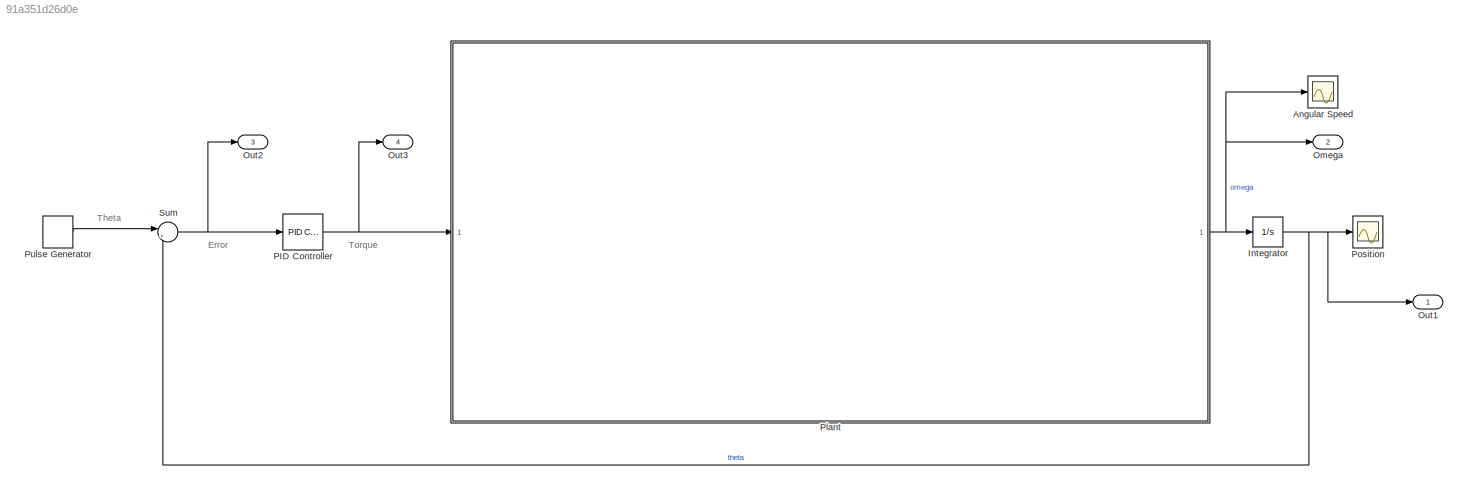
MODEL slx_91a351d26d0e
KIND model
CONFIG AbsTol = auto
CONFIG EnableMultiTasking = off
CONFIG FixedStep = auto
CONFIG MaxStep = auto
CONFIG MinStep = auto
CONFIG RelTol = 1e-3
CONFIG SampleTimeConstraint = Unconstrained
CONFIG SolverName = VariableStepAuto
CONFIG StartTime = 0.0
CONFIG StopTime = 3
BLOCK [Scope] Angular Speed
  Floating = off
  NumInputPorts = 1
  Ports = [1]
  ScopeSpecificationString = Simulink.scopes.TimeScopeBlockCfg('CurrentConfiguration', extmgr.ConfigurationSet(extmgr.Configuration('Core','General UI',true),extmgr.Configuration('Core','Source UI',true),extmgr.Configuration('Sources','WiredSimulink',true,'DataLoggingVariableName','ScopeData1'),extmgr.Configuration('Visuals','Time Domain',true,'SerializedDisplays',{struct('MinYLimReal','-16.66629','MaxYLimReal','85.93646','YL...<+1449ch>
BLOCK [Integrator] Integrator
  Ports = [1, 1]
BLOCK [Outport] Omega
  Port = 2
  SignalName = omega
BLOCK [Outport] Out1
  SignalName = theta
BLOCK [Outport] Out2
  Port = 3
  SignalName = error
BLOCK [Outport] Out3
  Port = 4
  SignalName = PID Torque
BLOCK [Reference] PID Controller  REF=slpidlib/PID Controller
  Ports = [1, 1]
  SourceBlock = slpidlib/PID Controller
  SourceProductBaseCode = SL
  SourceType = PID 1dof
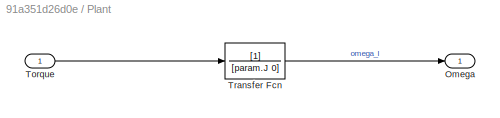
BLOCK [SubSystem] Plant
  Ports = [1, 1]
  RequestExecContextInheritance = off
BLOCK [Outport] Plant/Omega
BLOCK [Inport] Plant/Torque
BLOCK [TransferFcn] Plant/Transfer Fcn
  Denominator = [param.J 0]
BLOCK [Scope] Position
  Floating = off
  NumInputPorts = 1
  Ports = [1]
  ScopeSpecificationString = Simulink.scopes.TimeScopeBlockCfg('CurrentConfiguration', extmgr.ConfigurationSet(extmgr.Configuration('Core','General UI',true),extmgr.Configuration('Core','Source UI',true),extmgr.Configuration('Sources','WiredSimulink',true),extmgr.Configuration('Visuals','Time Domain',true,'SerializedDisplays',{struct('MinYLimReal','-0.23496','MaxYLimReal','2.11468','YLabelReal','','MinYLimMag','0.00000','MaxY...<+1432ch>
BLOCK [DiscretePulseGenerator] Pulse Generator
  Ports = [0, 1]
  PulseType = Time based
  PulseWidth = 50
BLOCK [Sum] Sum
  Inputs = |+-
  Ports = [2, 1]
ANNOTATION (root): Error
ANNOTATION (root): Theta
ANNOTATION (root): Torque
NET Integrator:1 -> Out1:1, Position:1, Sum:2
NET PID Controller:1 -> Out3:1, Plant:1
LINE Plant/Torque:1 -> Plant/Transfer Fcn:1
LINE Plant/Transfer Fcn:1 -> Plant/Omega:1
NET Plant:1 -> Angular Speed:1, Integrator:1, Omega:1
LINE Pulse Generator:1 -> Sum:1
NET Sum:1 -> Out2:1, PID Controller:1
note: NET lines group one-source signal fan-out (src -> all destinations, sorted); 1:1 wires keep LINE
